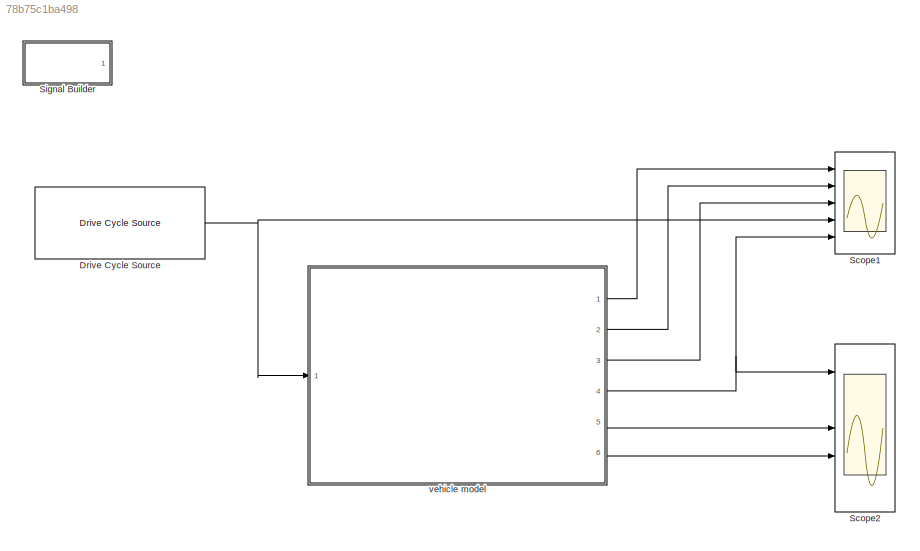
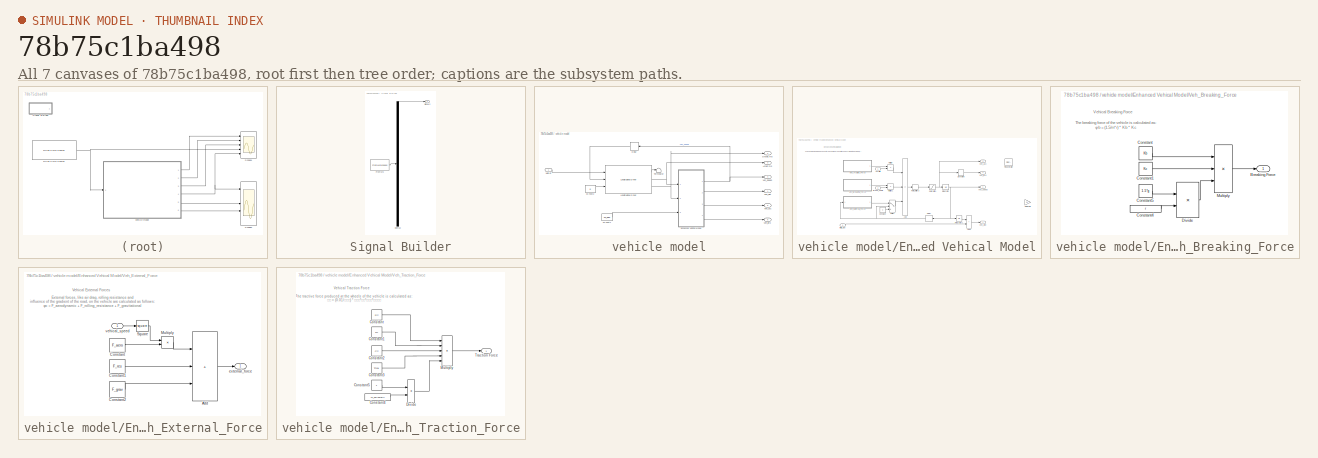
[diagram: thumbnail index - all 7 canvases of the model, root first then tree order]
MODEL slx_78b75c1ba498
KIND model
CONFIG AbsTol = auto
CONFIG EnableMultiTasking = off
CONFIG FixedStep = auto
CONFIG MaxStep = auto
CONFIG MinStep = auto
CONFIG RelTol = 1e-3
CONFIG SampleTimeConstraint = Unconstrained
CONFIG Solver = VariableStepAuto
CONFIG SolverName = VariableStepAuto
CONFIG StartTime = 0
CONFIG StopTime = 2400
BLOCK [Reference] Drive Cycle Source  REF=autolibshared/Drive Cycle Source
  AttributesFormatString = %<cycleVar> (%<tfinal>)
  Ports = [0, 1]
  SourceBlock = autolibshared/Drive Cycle Source
  SourceProductBaseCode = PW,MT,VE,VP
  SourceType = Drive Cycle Source
BLOCK [Scope] Scope1
  Floating = off
  NumInputPorts = 5
  Ports = [5]
  ScopeSpecificationString = Simulink.scopes.TimeScopeBlockCfg('CurrentConfiguration', extmgr.ConfigurationSet(extmgr.Configuration('Core','General UI',true),extmgr.Configuration('Core','Source UI',true),extmgr.Configuration('Sources','WiredSimulink',true,'DataLoggingVariableName','ScopeData1'),extmgr.Configuration('Visuals','Time Domain',true,'SerializedDisplays',{struct('MinYLimReal','-1307.40684','MaxYLimReal','11866.66157...<+3596ch>
BLOCK [Scope] Scope2
  Floating = off
  NumInputPorts = 5
  Ports = [5]
  ScopeSpecificationString = Simulink.scopes.TimeScopeBlockCfg('CurrentConfiguration', extmgr.ConfigurationSet(extmgr.Configuration('Core','General UI',true),extmgr.Configuration('Core','Source UI',true),extmgr.Configuration('Sources','WiredSimulink',true,'DataLoggingVariableName','ScopeData1'),extmgr.Configuration('Visuals','Time Domain',true,'SerializedDisplays',{struct('MinYLimReal','-3.18338','MaxYLimReal','28.65045','YLa...<+3889ch>
BLOCK [SubSystem] Signal Builder
  ClipboardFcn = sigbuilder_block('clipboard');
  CloseFcn = sigbuilder_block('close');
  ContinueFcn = sigbuilder_block('continue');
  CopyFcn = sigbuilder_block('copy');
  DeleteFcn = sigbuilder_block('delete');
  LoadFcn = sigbuilder_block('load');
  MaskHideContents = on
  ModelCloseFcn = sigbuilder_block('modelClose');
  NameChangeFcn = sigbuilder_block('namechange');
  OpenFcn = sigbuilder_block('open',[437.6 199.2 550.4 400 ]);
  PauseFcn = sigbuilder_block('pause');
  Ports = [0, 1]
  PreSaveFcn = sigbuilder_block('preSave');
  RequestExecContextInheritance = off
  StartFcn = sigbuilder_block('start');
  StopFcn = sigbuilder_block('stop');
  Tag = STV Subsys
BLOCK [Demux] Signal Builder/Demux
  DisplayOption = none
  Outputs = 1
  Ports = [1, 1]
  Tag = STV Demux
BLOCK [FromWorkspace] Signal Builder/FromWs
  Tag = STV FromWs
  VariableName = tuvar
BLOCK [Outport] Signal Builder/Signal 2
  Tag = STV Outport
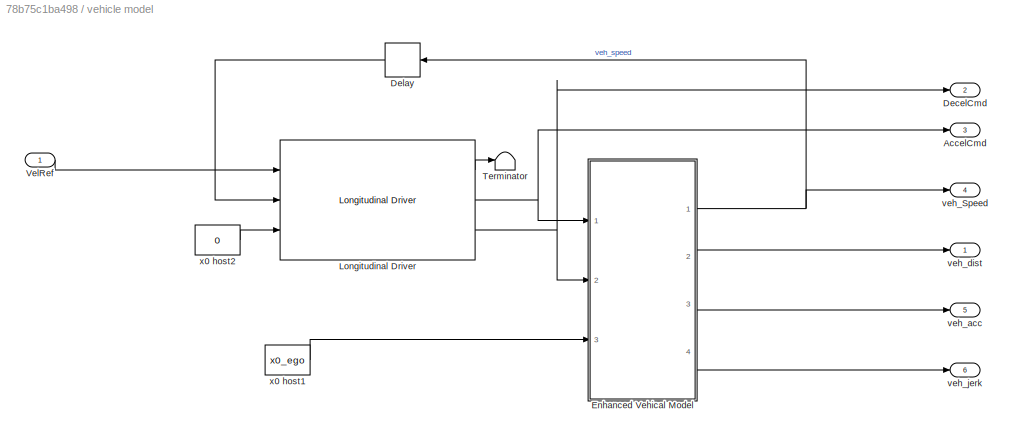
BLOCK [SubSystem] vehicle model
  Ports = [1, 6]
  RequestExecContextInheritance = off
BLOCK [Outport] vehicle model/AccelCmd
  Port = 3
BLOCK [Outport] vehicle model/DecelCmd
  Port = 2
BLOCK [Delay] vehicle model/Delay
  DelayLength = 1
  InitialCondition = 0
  InputPortMap = u0
  Ports = [1, 1]
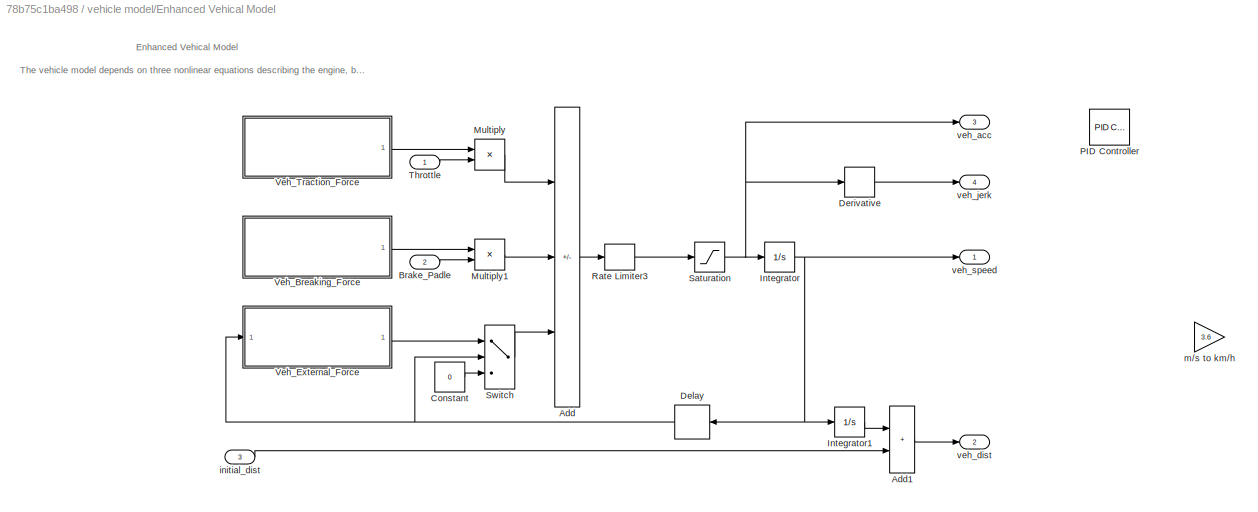
BLOCK [SubSystem] vehicle model/Enhanced Vehical Model
  Ports = [3, 4]
  RequestExecContextInheritance = off
BLOCK [Sum] vehicle model/Enhanced Vehical Model/Add
  IconShape = rectangular
  Inputs = +--
  Ports = [3, 1]
BLOCK [Sum] vehicle model/Enhanced Vehical Model/Add1
  IconShape = rectangular
  Ports = [2, 1]
BLOCK [Inport] vehicle model/Enhanced Vehical Model/Brake_Padle
  Port = 2
BLOCK [Constant] vehicle model/Enhanced Vehical Model/Constant
  Value = 0
BLOCK [Delay] vehicle model/Enhanced Vehical Model/Delay
  DelayLength = 1
  InitialCondition = 0
  InputPortMap = u0
  Ports = [1, 1]
BLOCK [Derivative] vehicle model/Enhanced Vehical Model/Derivative
BLOCK [Integrator] vehicle model/Enhanced Vehical Model/Integrator
  Ports = [1, 1]
BLOCK [Integrator] vehicle model/Enhanced Vehical Model/Integrator1
  Ports = [1, 1]
BLOCK [Product] vehicle model/Enhanced Vehical Model/Multiply
  Ports = [2, 1]
BLOCK [Product] vehicle model/Enhanced Vehical Model/Multiply1
  Ports = [2, 1]
BLOCK [Reference] vehicle model/Enhanced Vehical Model/PID Controller  REF=simulink/Continuous/PID Controller
  Ports = [1, 1]
  SourceBlock = simulink/Continuous/PID Controller
  SourceProductBaseCode = SL
  SourceType = PID 1dof
BLOCK [RateLimiter] vehicle model/Enhanced Vehical Model/Rate Limiter3
BLOCK [Saturate] vehicle model/Enhanced Vehical Model/Saturation
  LowerLimit = -3
  UpperLimit = 3
BLOCK [Switch] vehicle model/Enhanced Vehical Model/Switch
  Criteria = u2 > Threshold
BLOCK [Inport] vehicle model/Enhanced Vehical Model/Throttle
BLOCK [SubSystem] vehicle model/Enhanced Vehical Model/Veh_Breaking_Force
  Ports = [0, 1]
  RequestExecContextInheritance = off
BLOCK [Outport] vehicle model/Enhanced Vehical Model/Veh_Breaking_Force/Breaking Force 
  VectorParamsAs1DForOutWhenUnconnected = off
BLOCK [Constant] vehicle model/Enhanced Vehical Model/Veh_Breaking_Force/Constant
  Value = Kb
BLOCK [Constant] vehicle model/Enhanced Vehical Model/Veh_Breaking_Force/Constant1
  Value = Kc
BLOCK [Constant] vehicle model/Enhanced Vehical Model/Veh_Breaking_Force/Constant4
  Value = r
BLOCK [Constant] vehicle model/Enhanced Vehical Model/Veh_Breaking_Force/Constant5
  Value = 1.5*g
BLOCK [Product] vehicle model/Enhanced Vehical Model/Veh_Breaking_Force/Divide
  Inputs = */
  Ports = [2, 1]
BLOCK [Product] vehicle model/Enhanced Vehical Model/Veh_Breaking_Force/Multiply
  Inputs = 3
  Ports = [3, 1]
BLOCK [SubSystem] vehicle model/Enhanced Vehical Model/Veh_External_Force
  Ports = [1, 1]
  RequestExecContextInheritance = off
BLOCK [Sum] vehicle model/Enhanced Vehical Model/Veh_External_Force/Add
  IconShape = rectangular
  Inputs = +++
  Ports = [3, 1]
BLOCK [Constant] vehicle model/Enhanced Vehical Model/Veh_External_Force/Constant
  Value = F_aero
BLOCK [Constant] vehicle model/Enhanced Vehical Model/Veh_External_Force/Constant1
  Value = F_res
BLOCK [Constant] vehicle model/Enhanced Vehical Model/Veh_External_Force/Constant2
  Value = F_grav
BLOCK [Product] vehicle model/Enhanced Vehical Model/Veh_External_Force/Multiply
  Ports = [2, 1]
BLOCK [Math] vehicle model/Enhanced Vehical Model/Veh_External_Force/Square
  Operator = square
  Ports = [1, 1]
  SignedPower = on
BLOCK [Outport] vehicle model/Enhanced Vehical Model/Veh_External_Force/external_force
  VectorParamsAs1DForOutWhenUnconnected = off
BLOCK [Inport] vehicle model/Enhanced Vehical Model/Veh_External_Force/vehical_speed
BLOCK [SubSystem] vehicle model/Enhanced Vehical Model/Veh_Traction_Force
  Ports = [0, 1]
  RequestExecContextInheritance = off
BLOCK [Constant] vehicle model/Enhanced Vehical Model/Veh_Traction_Force/Constant
  Value = Rtr
BLOCK [Constant] vehicle model/Enhanced Vehical Model/Veh_Traction_Force/Constant1
  Value = Rf
BLOCK [Constant] vehicle model/Enhanced Vehical Model/Veh_Traction_Force/Constant2
  Value = Ctr
BLOCK [Constant] vehicle model/Enhanced Vehical Model/Veh_Traction_Force/Constant3
  Value = Tmax
BLOCK [Constant] vehicle model/Enhanced Vehical Model/Veh_Traction_Force/Constant4
  Value = m_Follower*r
BLOCK [Constant] vehicle model/Enhanced Vehical Model/Veh_Traction_Force/Constant5
BLOCK [Product] vehicle model/Enhanced Vehical Model/Veh_Traction_Force/Divide
  Inputs = */
  Ports = [2, 1]
BLOCK [Product] vehicle model/Enhanced Vehical Model/Veh_Traction_Force/Multiply
  Inputs = 5
  Ports = [5, 1]
BLOCK [Outport] vehicle model/Enhanced Vehical Model/Veh_Traction_Force/Traction Force
  VectorParamsAs1DForOutWhenUnconnected = off
BLOCK [Inport] vehicle model/Enhanced Vehical Model/initial_dist
  Port = 3
BLOCK [Gain] vehicle model/Enhanced Vehical Model/m//s to km//h
  Gain = 3.6
BLOCK [Outport] vehicle model/Enhanced Vehical Model/veh_acc
  Port = 3
  VectorParamsAs1DForOutWhenUnconnected = off
BLOCK [Outport] vehicle model/Enhanced Vehical Model/veh_dist
  Port = 2
  VectorParamsAs1DForOutWhenUnconnected = off
BLOCK [Outport] vehicle model/Enhanced Vehical Model/veh_jerk
  Port = 4
  VectorParamsAs1DForOutWhenUnconnected = off
BLOCK [Outport] vehicle model/Enhanced Vehical Model/veh_speed
  VectorParamsAs1DForOutWhenUnconnected = off
BLOCK [Reference] vehicle model/Longitudinal Driver  REF=autolibshared/Longitudinal Driver
  Ports = [3, 3]
  SourceBlock = autolibshared/Longitudinal Driver
  SourceProductBaseCode = PW,MT,VE,VP
  SourceType = Longitudinal Driver
BLOCK [Terminator] vehicle model/Terminator
BLOCK [Inport] vehicle model/VelRef
BLOCK [Outport] vehicle model/veh_Speed
  Port = 4
BLOCK [Outport] vehicle model/veh_acc
  Port = 5
BLOCK [Outport] vehicle model/veh_dist
BLOCK [Outport] vehicle model/veh_jerk
  Port = 6
BLOCK [Constant] vehicle model/x0 host1
  SampleTime = Ts
  Value = x0_ego
BLOCK [Constant] vehicle model/x0 host2
  SampleTime = Ts
  Value = 0
ANNOTATION vehicle model/Enhanced Vehical Model: The vehicle model depends on three nonlinear equations describing the engine, brake system and dynamics of the vehicle.
ANNOTATION vehicle model/Enhanced Vehical Model: Enhanced Vehical Model
ANNOTATION vehicle model/Enhanced Vehical Model/Veh_Breaking_Force: The breaking force of the vehicle is calculated as: φb = (1.5/m*r) * Kb * Kc
ANNOTATION vehicle model/Enhanced Vehical Model/Veh_Breaking_Force: Vehical Breaking Force
ANNOTATION vehicle model/Enhanced Vehical Model/Veh_External_Force: External forces, like air drag, rolling resistance and influence of the gradient of the road, on the vehicle are calculated as follows: φc = F_aerodynamic + F_rolling_resistance + F_gravitational
ANNOTATION vehicle model/Enhanced Vehical Model/Veh_External_Force: Vehical External Forces
ANNOTATION vehicle model/Enhanced Vehical Model/Veh_Traction_Force: The tractive force produced at the wheels of the vehicle is calculated as: 𝜑𝑡 = (0.01/𝑚∗𝑟) * 𝑅𝑡𝑟*𝑅𝑓*𝐶𝑡𝑟*𝑇𝑚𝑎𝑥
ANNOTATION vehicle model/Enhanced Vehical Model/Veh_Traction_Force: Vehical Traction Force
NET Drive Cycle Source:1 -> Scope1:4, vehicle model:1
LINE vehicle model/Delay:1 -> vehicle model/Longitudinal Driver:2
LINE vehicle model/Enhanced Vehical Model/Add1:1 -> vehicle model/Enhanced Vehical Model/veh_dist:1
LINE vehicle model/Enhanced Vehical Model/Add:1 -> vehicle model/Enhanced Vehical Model/Rate Limiter3:1
LINE vehicle model/Enhanced Vehical Model/Brake_Padle:1 -> vehicle model/Enhanced Vehical Model/Multiply1:2
LINE vehicle model/Enhanced Vehical Model/Constant:1 -> vehicle model/Enhanced Vehical Model/Switch:3
NET vehicle model/Enhanced Vehical Model/Delay:1 -> vehicle model/Enhanced Vehical Model/Switch:2, vehicle model/Enhanced Vehical Model/Veh_External_Force:1
LINE vehicle model/Enhanced Vehical Model/Derivative:1 -> vehicle model/Enhanced Vehical Model/veh_jerk:1
LINE vehicle model/Enhanced Vehical Model/Integrator1:1 -> vehicle model/Enhanced Vehical Model/Add1:1
NET vehicle model/Enhanced Vehical Model/Integrator:1 -> vehicle model/Enhanced Vehical Model/Delay:1, vehicle model/Enhanced Vehical Model/Integrator1:1, vehicle model/Enhanced Vehical Model/veh_speed:1
LINE vehicle model/Enhanced Vehical Model/Multiply1:1 -> vehicle model/Enhanced Vehical Model/Add:2
LINE vehicle model/Enhanced Vehical Model/Multiply:1 -> vehicle model/Enhanced Vehical Model/Add:1
LINE vehicle model/Enhanced Vehical Model/Rate Limiter3:1 -> vehicle model/Enhanced Vehical Model/Saturation:1
NET vehicle model/Enhanced Vehical Model/Saturation:1 -> vehicle model/Enhanced Vehical Model/Derivative:1, vehicle model/Enhanced Vehical Model/Integrator:1, vehicle model/Enhanced Vehical Model/veh_acc:1
LINE vehicle model/Enhanced Vehical Model/Switch:1 -> vehicle model/Enhanced Vehical Model/Add:3
LINE vehicle model/Enhanced Vehical Model/Throttle:1 -> vehicle model/Enhanced Vehical Model/Multiply:2
LINE vehicle model/Enhanced Vehical Model/Veh_Breaking_Force/Constant1:1 -> vehicle model/Enhanced Vehical Model/Veh_Breaking_Force/Multiply:2
LINE vehicle model/Enhanced Vehical Model/Veh_Breaking_Force/Constant4:1 -> vehicle model/Enhanced Vehical Model/Veh_Breaking_Force/Divide:2
LINE vehicle model/Enhanced Vehical Model/Veh_Breaking_Force/Constant5:1 -> vehicle model/Enhanced Vehical Model/Veh_Breaking_Force/Divide:1
LINE vehicle model/Enhanced Vehical Model/Veh_Breaking_Force/Constant:1 -> vehicle model/Enhanced Vehical Model/Veh_Breaking_Force/Multiply:1
LINE vehicle model/Enhanced Vehical Model/Veh_Breaking_Force/Divide:1 -> vehicle model/Enhanced Vehical Model/Veh_Breaking_Force/Multiply:3
LINE vehicle model/Enhanced Vehical Model/Veh_Breaking_Force/Multiply:1 -> vehicle model/Enhanced Vehical Model/Veh_Breaking_Force/Breaking Force :1
LINE vehicle model/Enhanced Vehical Model/Veh_Breaking_Force:1 -> vehicle model/Enhanced Vehical Model/Multiply1:1
LINE vehicle model/Enhanced Vehical Model/Veh_External_Force/Add:1 -> vehicle model/Enhanced Vehical Model/Veh_External_Force/external_force:1
LINE vehicle model/Enhanced Vehical Model/Veh_External_Force/Constant1:1 -> vehicle model/Enhanced Vehical Model/Veh_External_Force/Add:2
LINE vehicle model/Enhanced Vehical Model/Veh_External_Force/Constant2:1 -> vehicle model/Enhanced Vehical Model/Veh_External_Force/Add:3
LINE vehicle model/Enhanced Vehical Model/Veh_External_Force/Constant:1 -> vehicle model/Enhanced Vehical Model/Veh_External_Force/Multiply:2
LINE vehicle model/Enhanced Vehical Model/Veh_External_Force/Multiply:1 -> vehicle model/Enhanced Vehical Model/Veh_External_Force/Add:1
LINE vehicle model/Enhanced Vehical Model/Veh_External_Force/Square:1 -> vehicle model/Enhanced Vehical Model/Veh_External_Force/Multiply:1
LINE vehicle model/Enhanced Vehical Model/Veh_External_Force/vehical_speed:1 -> vehicle model/Enhanced Vehical Model/Veh_External_Force/Square:1
LINE vehicle model/Enhanced Vehical Model/Veh_External_Force:1 -> vehicle model/Enhanced Vehical Model/Switch:1
LINE vehicle model/Enhanced Vehical Model/Veh_Traction_Force/Constant1:1 -> vehicle model/Enhanced Vehical Model/Veh_Traction_Force/Multiply:2
LINE vehicle model/Enhanced Vehical Model/Veh_Traction_Force/Constant2:1 -> vehicle model/Enhanced Vehical Model/Veh_Traction_Force/Multiply:3
LINE vehicle model/Enhanced Vehical Model/Veh_Traction_Force/Constant3:1 -> vehicle model/Enhanced Vehical Model/Veh_Traction_Force/Multiply:4
LINE vehicle model/Enhanced Vehical Model/Veh_Traction_Force/Constant4:1 -> vehicle model/Enhanced Vehical Model/Veh_Traction_Force/Divide:2
LINE vehicle model/Enhanced Vehical Model/Veh_Traction_Force/Constant5:1 -> vehicle model/Enhanced Vehical Model/Veh_Traction_Force/Divide:1
LINE vehicle model/Enhanced Vehical Model/Veh_Traction_Force/Constant:1 -> vehicle model/Enhanced Vehical Model/Veh_Traction_Force/Multiply:1
LINE vehicle model/Enhanced Vehical Model/Veh_Traction_Force/Divide:1 -> vehicle model/Enhanced Vehical Model/Veh_Traction_Force/Multiply:5
LINE vehicle model/Enhanced Vehical Model/Veh_Traction_Force/Multiply:1 -> vehicle model/Enhanced Vehical Model/Veh_Traction_Force/Traction Force:1
LINE vehicle model/Enhanced Vehical Model/Veh_Traction_Force:1 -> vehicle model/Enhanced Vehical Model/Multiply:1
LINE vehicle model/Enhanced Vehical Model/initial_dist:1 -> vehicle model/Enhanced Vehical Model/Add1:2
NET vehicle model/Enhanced Vehical Model:1 -> vehicle model/Delay:1, vehicle model/veh_Speed:1
LINE vehicle model/Enhanced Vehical Model:2 -> vehicle model/veh_dist:1
LINE vehicle model/Enhanced Vehical Model:3 -> vehicle model/veh_acc:1
LINE vehicle model/Enhanced Vehical Model:4 -> vehicle model/veh_jerk:1
LINE vehicle model/Longitudinal Driver:1 -> vehicle model/Terminator:1
NET vehicle model/Longitudinal Driver:2 -> vehicle model/AccelCmd:1, vehicle model/Enhanced Vehical Model:1
NET vehicle model/Longitudinal Driver:3 -> vehicle model/DecelCmd:1, vehicle model/Enhanced Vehical Model:2
LINE vehicle model/VelRef:1 -> vehicle model/Longitudinal Driver:1
LINE vehicle model/x0 host1:1 -> vehicle model/Enhanced Vehical Model:3
LINE vehicle model/x0 host2:1 -> vehicle model/Longitudinal Driver:3
LINE vehicle model:1 -> Scope1:1
LINE vehicle model:2 -> Scope1:2
LINE vehicle model:3 -> Scope1:3
NET vehicle model:4 -> Scope1:5, Scope2:1
LINE vehicle model:5 -> Scope2:3
LINE vehicle model:6 -> Scope2:4
note: NET lines group one-source signal fan-out (src -> all destinations, sorted); 1:1 wires keep LINE
